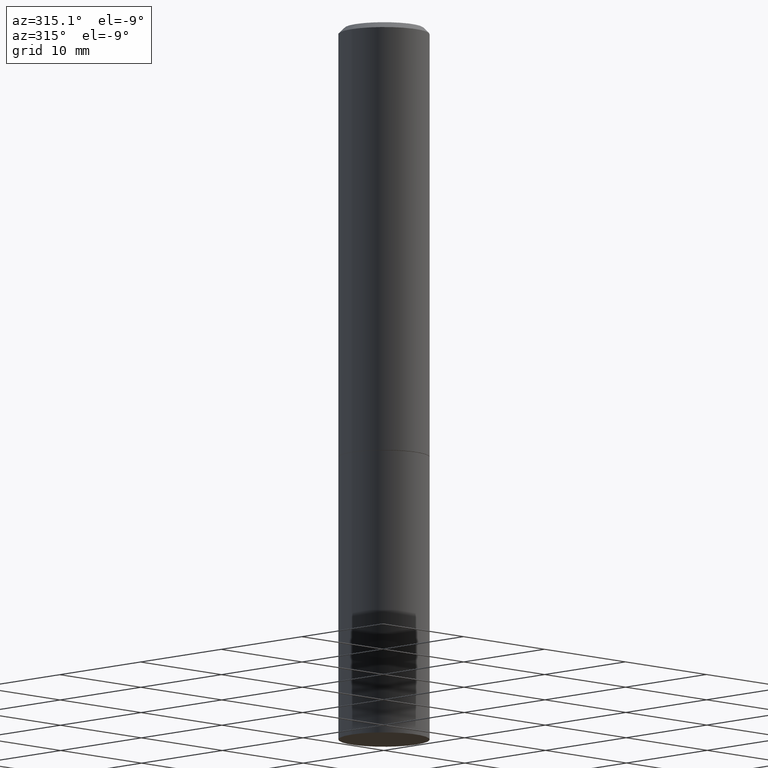
[diagram: clean part render]
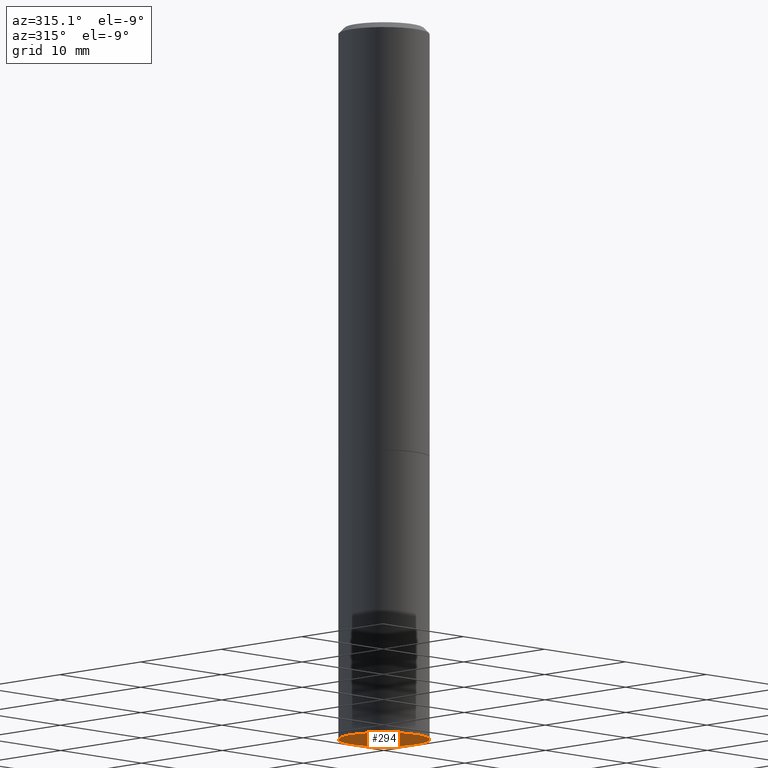
[diagram: same view with one face highlighted and labeled with its STEP entity id]
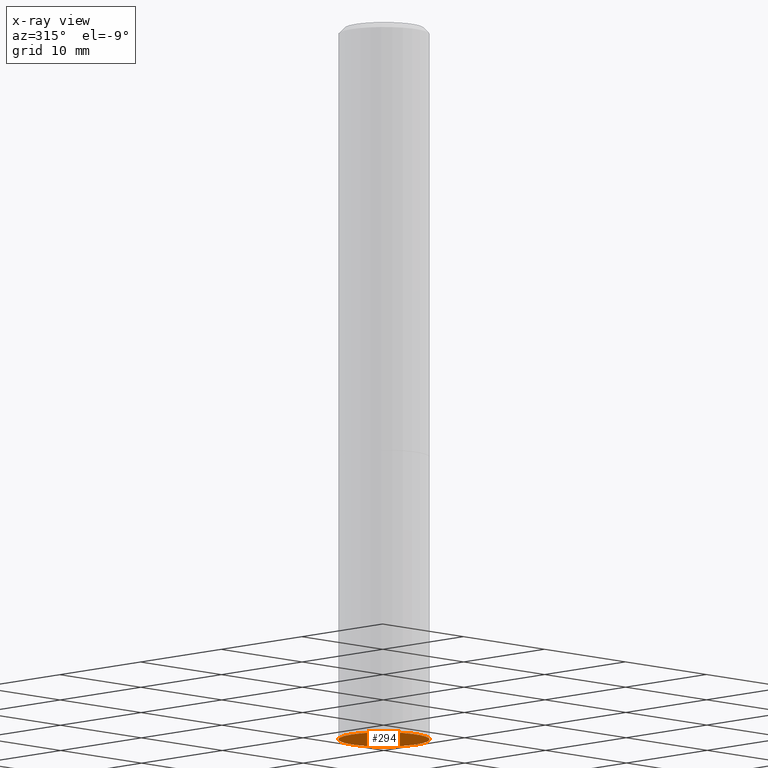
[diagram: x-ray of the same camera — body ghosted, the highlighted face saturated]
A machine part, auxiliary view. The second image highlights one B-rep face of the part: STEP entity #294.
The next image is the same camera in x-ray: the body ghosted, the highlighted face saturated — about 0% of this face is hidden behind the body in this view.
In plain terms, the highlighted planar face has unit normal (0, -0, -1).
Its self-contained STEP definition (entity closure, byte-faithful):
#9 = DIRECTION ( 'NONE',  ( -1.000000000000000000, 6.982962677686265922E-15, -4.876176775795935793E-29 ) ) ;
#20 = CARTESIAN_POINT ( 'NONE',  ( 6.065496279980994755E-29, -8.659921164732655335E-15, -2.480300000000000171 ) ) ;
#22 = EDGE_CURVE ( 'NONE', #356, #355, #68, .T. ) ;
#42 = ORIENTED_EDGE ( 'NONE', *, *, #22, .F. ) ;
#50 = ORIENTED_EDGE ( 'NONE', *, *, #318, .F. ) ;
#53 = CARTESIAN_POINT ( 'NONE',  ( -0.1575000000000000011, -5.822483814998842744E-15, -2.480300000000000171 ) ) ;
#59 = DIRECTION ( 'NONE',  ( 1.000000000000000000, -6.982962677686261977E-15, 0.000000000000000000 ) ) ;
#68 = CIRCLE ( 'NONE', #241, 0.1575000000000000011 ) ;
#149 = CARTESIAN_POINT ( 'NONE',  ( 1.099816621735647434E-15, 0.1574999999999913136, -2.480300000000001059 ) ) ;
#162 = AXIS2_PLACEMENT_3D ( 'NONE', #149, #262, #9 ) ;
#171 = CARTESIAN_POINT ( 'NONE',  ( 6.065496279980994755E-29, -8.659921164732655335E-15, -2.480300000000000171 ) ) ;
#201 = DIRECTION ( 'NONE',  ( -2.445468806185136597E-29, 3.491481338843145583E-15, 1.000000000000000000 ) ) ;
#235 = AXIS2_PLACEMENT_3D ( 'NONE', #171, #201, #306 ) ;
#241 = AXIS2_PLACEMENT_3D ( 'NONE', #20, #314, #59 ) ;
#262 = DIRECTION ( 'NONE',  ( 2.438088387897960049E-29, -3.491481338843145188E-15, -1.000000000000000000 ) ) ;
#277 = EDGE_LOOP ( 'NONE', ( #42, #50 ) ) ;
#285 = CARTESIAN_POINT ( 'NONE',  ( 0.1575000000000000011, -9.759737786468242027E-15, -2.480300000000000171 ) ) ;
#289 = PLANE ( 'NONE',  #162 ) ;
#294 = ADVANCED_FACE ( 'NONE', ( #321 ), #289, .T. ) ;
#306 = DIRECTION ( 'NONE',  ( 1.000000000000000000, -6.982962677686261977E-15, 0.000000000000000000 ) ) ;
#314 = DIRECTION ( 'NONE',  ( -2.445468806185136597E-29, 3.491481338843145583E-15, 1.000000000000000000 ) ) ;
#318 = EDGE_CURVE ( 'NONE', #355, #356, #320, .T. ) ;
#320 = CIRCLE ( 'NONE', #235, 0.1575000000000000011 ) ;
#321 = FACE_OUTER_BOUND ( 'NONE', #277, .T. ) ;
#355 = VERTEX_POINT ( 'NONE', #53 ) ;
#356 = VERTEX_POINT ( 'NONE', #285 ) ;